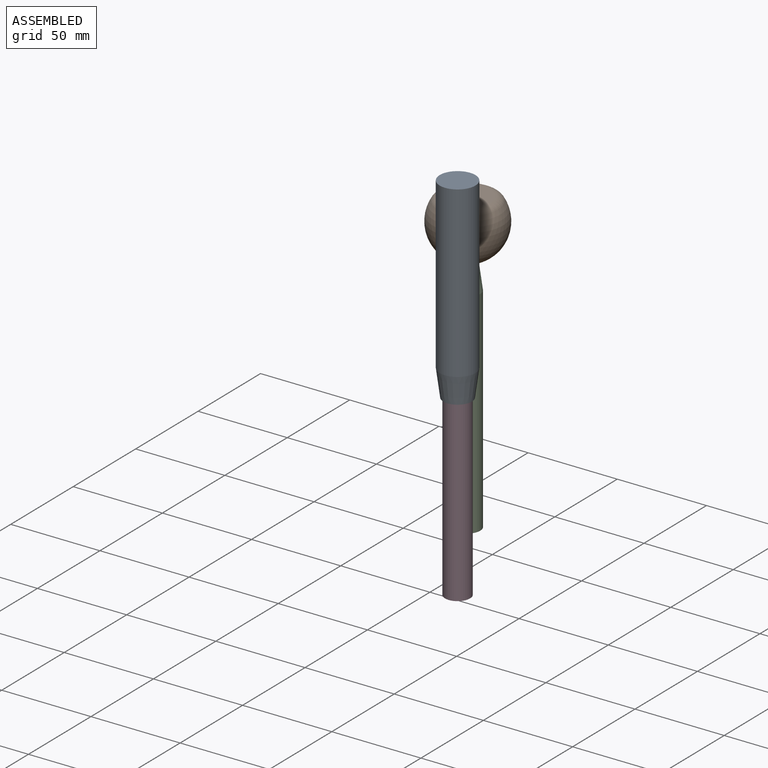
[diagram: assembled view]
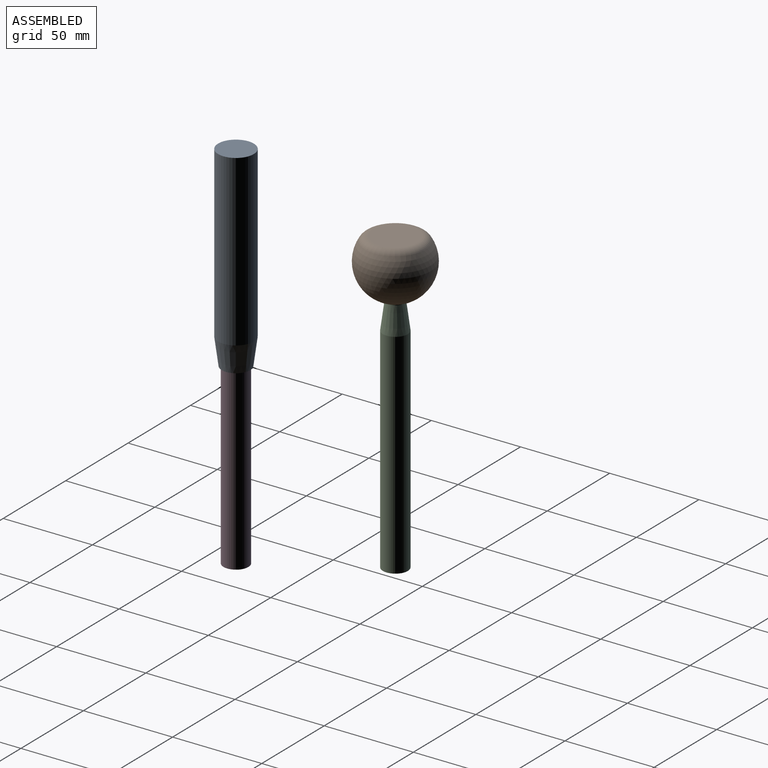
[diagram: assembled view, second angle]
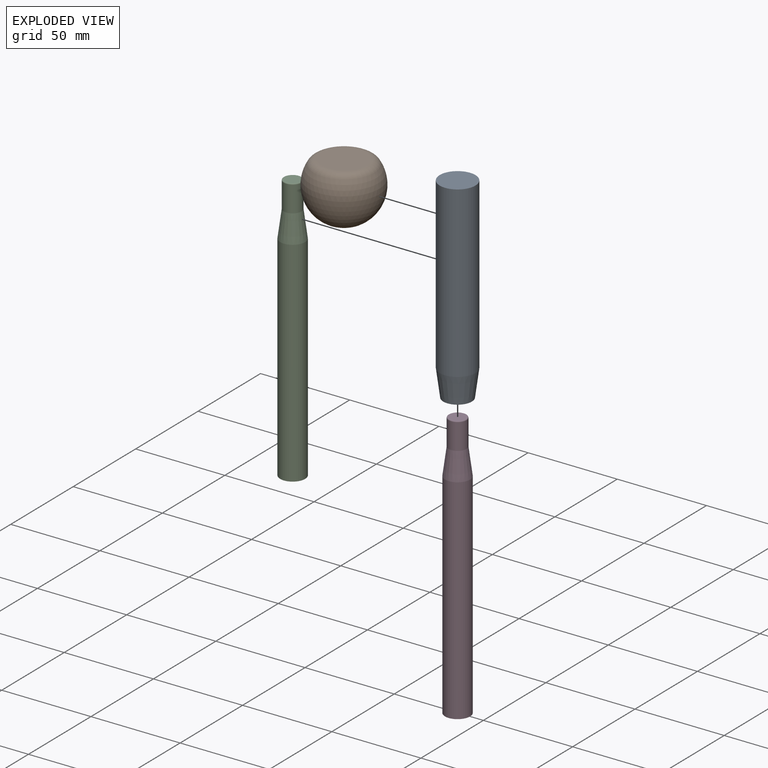
[diagram: exploded view]
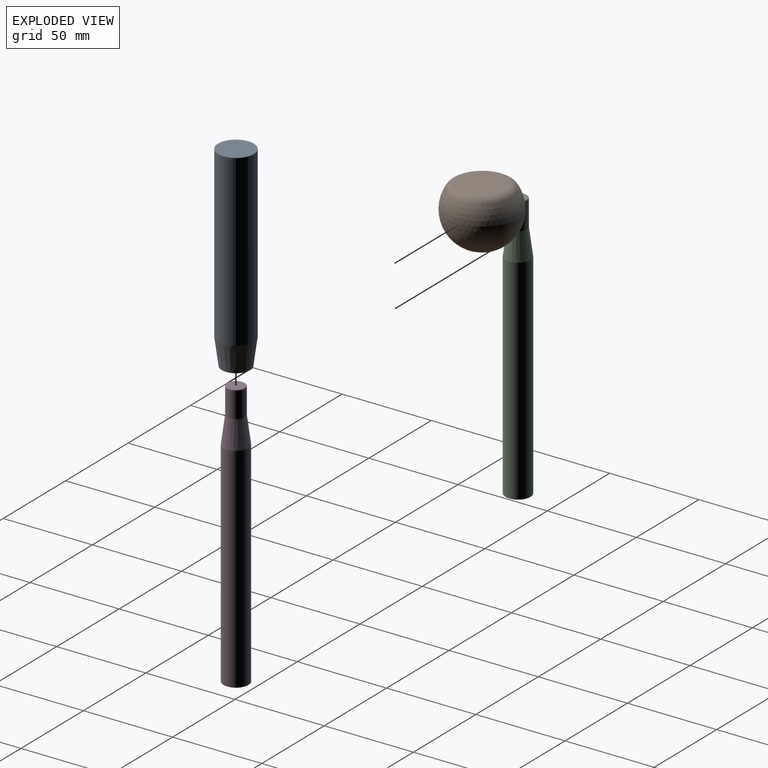
[diagram: exploded view, second angle]
ASSEMBLY  parts=4 mates=2
PART A: 8 faces, bbox 20x20x110 mm
  f0: cylinder r=10mm len=95mm, axis (0,0,-1), area 5969mm2, adj f1,f7
  f1: plane 20x20mm, normal (0,0,1), area 314.2mm2, adj f0
  f2: plane 16x16mm, normal (0,0,-1), area 42.7mm2, adj f3,f7
  f3: cylinder r=7.1mm len=35mm, axis (0,0,-1), area 1561.4mm2, adj f2,f4
  f4: plane 14.2x14.2mm, normal (0,0,-1), area 79.8mm2, adj f3,f5
  f5: cylinder r=5mm len=15mm, axis (0,0,-1), area 471.2mm2, adj f4,f6
  f6: plane 10x10mm, normal (0,0,-1), area 78.5mm2, adj f5
  f7: cone r=10mm half-angle=7.6deg, axis (0,0,1), area 855.7mm2, adj f0,f2
PART B: 5 faces, bbox 40x40x32.3 mm
  f0: cylinder r=5mm len=14.37mm, axis (0,0,1), area 451.3mm2, adj f1,f3
  f1: plane 10x10mm, normal (0,0,-1), area 78.5mm2, adj f0
  f2: plane 25.45x25.45mm, normal (0,0,1), area 508.6mm2, adj f4
  f3: sphere r=20mm, area 3764.4mm2, adj f0,f4
  f4: torus R=12.72mm, axis (0,0,1), area 478.7mm2, adj f2,f3
PART C: 6 faces, bbox 14x14x150 mm
  f0: cylinder r=7mm len=120mm, axis (0,0,1), area 5277.9mm2, adj f1,f2
  f1: plane 14x14mm, normal (0,0,-1), area 153.9mm2, adj f0
  f2: cone r=5mm half-angle=7.6deg, axis (0,0,-1), area 570.5mm2, adj f0,f4
  f3: plane 9x9mm, normal (0,0,1), area 63.6mm2, adj f5
  f4: cylinder r=5mm len=14.5mm, axis (0,0,-1), area 455.5mm2, adj f2,f5
  f5: torus R=4.5mm, axis (0,0,1), area 23.8mm2, adj f3,f4
PART D: same geometry as C
PLACE A t=(-9.97,-56.43,-39.87)mm
PLACE B t=(-48.11,6.22,15.29)mm
PLACE C t=(-48.11,6.22,-19.71)mm
PLACE D t=(-9.97,-56.43,-19.87)mm
MATE fastened D.f2 <-> A.f5  axis (0,0,1) through (-9.97,-56.43,10.13)mm
MATE fastened C.f2 <-> B.f0  axis (0,0,1) through (-48.11,6.22,10.29)mm
